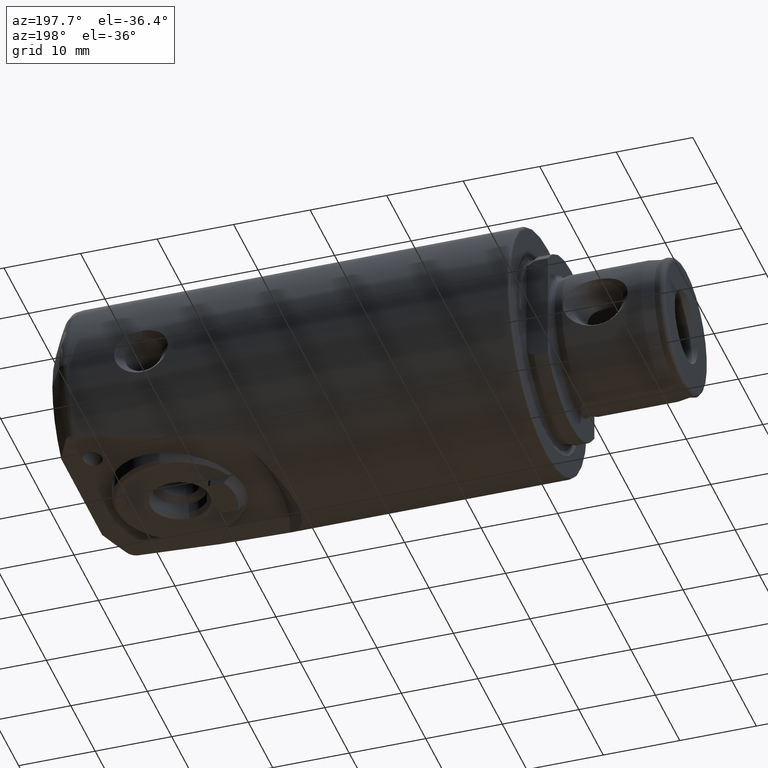
[diagram: clean part render]
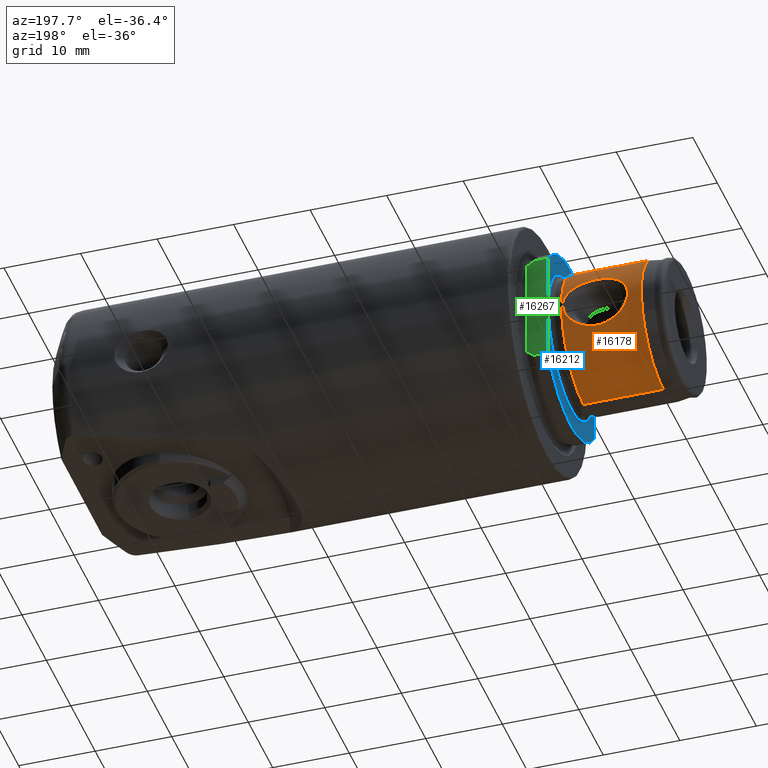
[diagram: same view with three faces highlighted in distinct colors, each labeled with its STEP entity id]
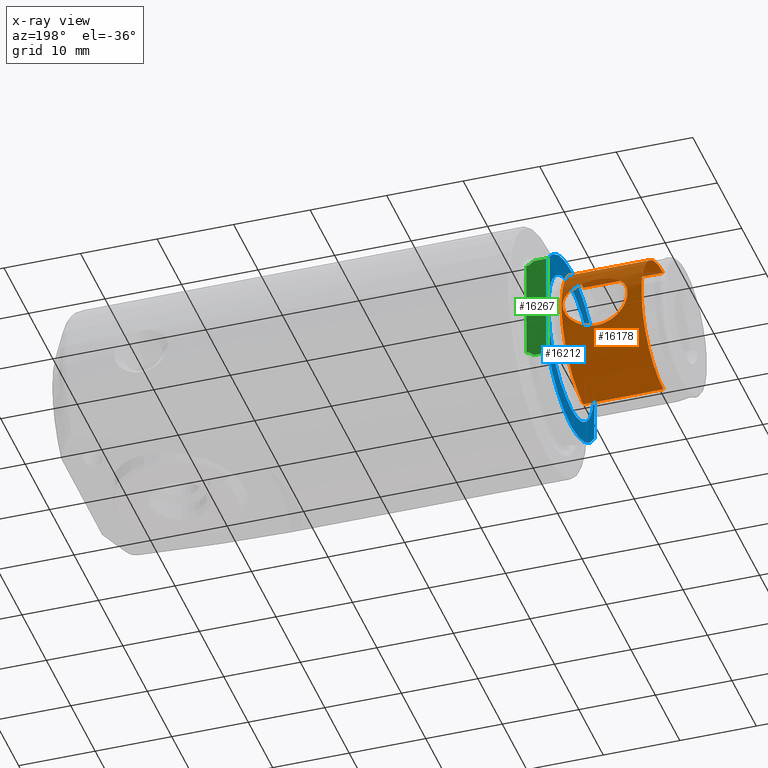
[diagram: x-ray of the same camera — body ghosted, the three highlighted faces saturated]
A machine part, auxiliary view with three faces highlighted in distinct colors.
The next image is the same camera in x-ray (body ghosted, the three faces saturated) — at least one of them is partly hidden behind the body in this view.
Their STEP definitions:

[orange] entity #16178 — the highlighted cylindrical surface (partial cylindrical patch) has radius 9 mm, axis along (-1, -0, -0).
#126 = AXIS2_PLACEMENT_3D ( 'NONE', #869, #870, #871 ) ;
#127 = AXIS2_PLACEMENT_3D ( 'NONE', #17529, #17531, #17533 ) ;
#290 = AXIS2_PLACEMENT_3D ( 'NONE', #12076, #9062, #9063 ) ;
#428 = VERTEX_POINT ( 'NONE', #16238 ) ;
#618 = VERTEX_POINT ( 'NONE', #16286 ) ;
#747 = CARTESIAN_POINT ( 'NONE',  ( 8.792119331565921000, 8.279182839309770600, 3.529182839309769700 ) ) ;
#783 = CARTESIAN_POINT ( 'NONE',  ( 9.050000000000002500, 8.279182839309772400, 3.529182839309770600 ) ) ;
#786 = CARTESIAN_POINT ( 'NONE',  ( 8.534371879930486000, 8.287770700800534100, 3.509222754150196400 ) ) ;
#787 = CARTESIAN_POINT ( 'NONE',  ( 8.030629303562751200, 8.320374629871484000, 3.431202929860633700 ) ) ;
#788 = CARTESIAN_POINT ( 'NONE',  ( 7.782828082071356200, 8.344380062457190700, 3.373179524496056300 ) ) ;
#789 = CARTESIAN_POINT ( 'NONE',  ( 7.295550732481837400, 8.405728157645263800, 3.217258595603105200 ) ) ;
#790 = CARTESIAN_POINT ( 'NONE',  ( 7.058433417566536000, 8.442869157967438200, 3.119745613289564000 ) ) ;
#791 = CARTESIAN_POINT ( 'NONE',  ( 6.609762264773638500, 8.524247717753041800, 2.889991895590608100 ) ) ;
#792 = CARTESIAN_POINT ( 'NONE',  ( 6.396213130731509500, 8.568739803727364500, 2.757208420720764800 ) ) ;
#793 = CARTESIAN_POINT ( 'NONE',  ( 5.992332893486008100, 8.661158162952521200, 2.451497374176875500 ) ) ;
#794 = CARTESIAN_POINT ( 'NONE',  ( 5.803581312974997400, 8.708792367896316800, 2.279102721991653100 ) ) ;
#795 = CARTESIAN_POINT ( 'NONE',  ( 5.467915888044560200, 8.798626071499713300, 1.903037828957794500 ) ) ;
#796 = CARTESIAN_POINT ( 'NONE',  ( 5.317749119378566600, 8.841668578324840800, 1.695896072397754800 ) ) ;
#797 = CARTESIAN_POINT ( 'NONE',  ( 5.068094435295361000, 8.915698750673126200, 1.249592943544666700 ) ) ;
#798 = CARTESIAN_POINT ( 'NONE',  ( 4.970304389879433200, 8.946111447659763600, 1.014557819399824800 ) ) ;
#799 = CARTESIAN_POINT ( 'NONE',  ( 4.869050336493750700, 8.977960561359820300, 0.6417036382795913200 ) ) ;
#800 = CARTESIAN_POINT ( 'NONE',  ( 4.843133275222428800, 8.986211832899973800, 0.5139959891301637600 ) ) ;
#801 = CARTESIAN_POINT ( 'NONE',  ( 4.808858795842867000, 8.997152024550322500, 0.2597122055726454600 ) ) ;
#802 = CARTESIAN_POINT ( 'NONE',  ( 4.800185150849697100, 8.999940612023802800, 0.1321312035373216900 ) ) ;
#803 = CARTESIAN_POINT ( 'NONE',  ( 4.799638471519117800, 9.000115961901936900, -0.2519352534534669000 ) ) ;
#804 = CARTESIAN_POINT ( 'NONE',  ( 4.834568683255204400, 8.988813486137850400, -0.5126193607702556100 ) ) ;
#805 = CARTESIAN_POINT ( 'NONE',  ( 4.967698236952844400, 8.946924533849381700, -1.007019306276765400 ) ) ;
#806 = CARTESIAN_POINT ( 'NONE',  ( 5.066902088414940900, 8.916065482257227600, -1.246917065820423200 ) ) ;
#807 = CARTESIAN_POINT ( 'NONE',  ( 5.439981501606305300, 8.805396908864471700, -1.915486541088751800 ) ) ;
#808 = CARTESIAN_POINT ( 'NONE',  ( 5.788402104609161800, 8.707800687053076400, -2.297282546585159000 ) ) ;
#809 = CARTESIAN_POINT ( 'NONE',  ( 6.601665494909882500, 8.521749144933309600, -2.912574705499452400 ) ) ;
#810 = CARTESIAN_POINT ( 'NONE',  ( 7.051484680047200200, 8.436421666946156300, -3.139263925468031700 ) ) ;
#811 = CARTESIAN_POINT ( 'NONE',  ( 8.028637999510726400, 8.313467062340501800, -3.451732020253471600 ) ) ;
#812 = CARTESIAN_POINT ( 'NONE',  ( 8.533174890312116300, 8.279182839309779500, -3.529182839309779100 ) ) ;
#813 = CARTESIAN_POINT ( 'NONE',  ( 9.050000000000002500, 8.279182839309770600, -3.529182839309769300 ) ) ;
#867 = CARTESIAN_POINT ( 'NONE',  ( 9.567191563781070900, 8.279182839309779500, -3.529182839309779100 ) ) ;
#869 = CARTESIAN_POINT ( 'NONE',  ( 13.43799579955534000, 0.0000000000000000000, 0.0000000000000000000 ) ) ;
#870 = DIRECTION ( 'NONE',  ( -1.000000000000000000, -0.0000000000000000000, -0.0000000000000000000 ) ) ;
#871 = DIRECTION ( 'NONE',  ( 0.0000000000000000000, 0.0000000000000000000, 1.000000000000000000 ) ) ;
#872 = CARTESIAN_POINT ( 'NONE',  ( 9.050000000000002500, 8.279182839309770600, -3.529182839309769300 ) ) ;
#873 = CARTESIAN_POINT ( 'NONE',  ( 10.07141737996730800, 8.313471798190427400, -3.451720976327822500 ) ) ;
#874 = CARTESIAN_POINT ( 'NONE',  ( 11.04857319843715900, 8.436431182535118400, -3.139238751684581900 ) ) ;
#875 = CARTESIAN_POINT ( 'NONE',  ( 11.49938081513970000, 8.522001333031578700, -2.911697848329548600 ) ) ;
#876 = CARTESIAN_POINT ( 'NONE',  ( 12.10709757366733400, 8.661010426919251200, -2.452044280765697700 ) ) ;
#877 = CARTESIAN_POINT ( 'NONE',  ( 12.29462755135398300, 8.708333058724395700, -2.280836473046138600 ) ) ;
#878 = CARTESIAN_POINT ( 'NONE',  ( 12.63033696911628000, 8.798138645976671100, -1.905265347562255200 ) ) ;
#879 = CARTESIAN_POINT ( 'NONE',  ( 12.78124555637710300, 8.841380236149579000, -1.697291616488287900 ) ) ;
#880 = CARTESIAN_POINT ( 'NONE',  ( 13.03044896325506800, 8.915257153355147700, -1.252594587696995500 ) ) ;
#881 = CARTESIAN_POINT ( 'NONE',  ( 13.12855499283305600, 8.945755720386781500, -1.017833262778579300 ) ) ;
#882 = CARTESIAN_POINT ( 'NONE',  ( 13.26437316954764400, 8.988470792882919700, -0.5195409176783304400 ) ) ;
#883 = CARTESIAN_POINT ( 'NONE',  ( 13.29926759921525400, 8.999765079491659500, -0.2642737472464791200 ) ) ;
#884 = CARTESIAN_POINT ( 'NONE',  ( 13.30070953111818500, 9.000227584962750900, 0.2480232214870686500 ) ) ;
#885 = CARTESIAN_POINT ( 'NONE',  ( 13.26613388505780500, 8.989039081199392100, 0.5085824007325204800 ) ) ;
#886 = CARTESIAN_POINT ( 'NONE',  ( 13.13383396513952000, 8.947402180837704200, 1.002733202804021000 ) ) ;
#887 = CARTESIAN_POINT ( 'NONE',  ( 13.03480438549420800, 8.916589063687931500, 1.243135070434728600 ) ) ;
#888 = CARTESIAN_POINT ( 'NONE',  ( 12.78706372708602100, 8.843065949956420400, 1.688528927423316800 ) ) ;
#889 = CARTESIAN_POINT ( 'NONE',  ( 12.63804335945576400, 8.800272531126244900, 1.895655175006566700 ) ) ;
#890 = CARTESIAN_POINT ( 'NONE',  ( 12.29941851167200400, 8.709544960498469400, 2.276429604815410000 ) ) ;
#891 = CARTESIAN_POINT ( 'NONE',  ( 12.11305405915325800, 8.662473897318644600, 2.446865545760772000 ) ) ;
#892 = CARTESIAN_POINT ( 'NONE',  ( 11.70972705713950300, 8.570018315877339500, 2.753251003138839500 ) ) ;
#893 = CARTESIAN_POINT ( 'NONE',  ( 11.49200698931541500, 8.524581060407364000, 2.889034789179233600 ) ) ;
#1931 = EDGE_LOOP ( 'NONE', ( #20074, #20075, #20076, #20077 ) ) ;
#1980 = EDGE_LOOP ( 'NONE', ( #20072, #20073 ) ) ;
#5164 = B_SPLINE_CURVE_WITH_KNOTS ( 'NONE', 3,
 ( #783, #747, #786, #787, #788, #789, #790, #791, #792, #793, #794, #795, #796, #797, #798, #799, #800, #801, #802, #803, #804, #805, #806, #807, #808, #809, #810, #811, #812, #813 ),
 .UNSPECIFIED., .F., .F.,
 ( 4, 2, 2, 2, 2, 2, 2, 2, 2, 2, 2, 2, 2, 2, 4 ),
 ( 0.01525965988027194000, 0.01602502366883326200, 0.01679038745739458400, 0.01755575124595590600, 0.01832111503451722800, 0.01908647882307855400, 0.01985184261163987600, 0.02061720640020119800, 0.02099988829448186000, 0.02138257018876252300, 0.02214793397732384200, 0.02291329776588516700, 0.02444402534300781100, 0.02597475292013045500, 0.02750548049725309900 ),
 .UNSPECIFIED. ) ;
#5167 = B_SPLINE_CURVE_WITH_KNOTS ( 'NONE', 3,
 ( #872, #867, #873, #874, #875, #876, #877, #878, #879, #880, #881, #882, #883, #884, #885, #886, #887, #888, #889, #890, #891, #892, #893, #17512, #17513, #17514, #17515, #17516, #17518, #17520 ),
 .UNSPECIFIED., .F., .F.,
 ( 4, 2, 2, 2, 2, 2, 2, 2, 2, 2, 2, 2, 2, 2, 4 ),
 ( 0.003005156381972999400, 0.004536969319260369100, 0.006068782256547739600, 0.006834688725191422800, 0.007600595193835105000, 0.008366501662478789000, 0.009132408131122472100, 0.009898314599766155200, 0.01066422106840983800, 0.01143012753705352100, 0.01219603400569720500, 0.01296194047434088800, 0.01372784694298457100, 0.01449375341162825700, 0.01525965988027194000 ),
 .UNSPECIFIED. ) ;
#9062 = DIRECTION ( 'NONE',  ( -1.000000000000000000, -0.0000000000000000000, -0.0000000000000000000 ) ) ;
#9063 = DIRECTION ( 'NONE',  ( 0.0000000000000000000, 0.0000000000000000000, 1.000000000000000000 ) ) ;
#10093 = FACE_BOUND ( 'NONE', #1980, .T. ) ;
#10095 = FACE_OUTER_BOUND ( 'NONE', #1931, .T. ) ;
#10101 = CYLINDRICAL_SURFACE ( 'NONE', #290, 9.000000000000000000 ) ;
#11078 = EDGE_CURVE ( 'NONE', #618, #428, #5164, .T. ) ;
#11100 = EDGE_CURVE ( 'NONE', #16102, #12104, #13474, .T. ) ;
#11102 = EDGE_CURVE ( 'NONE', #428, #618, #5167, .T. ) ;
#11103 = EDGE_CURVE ( 'NONE', #12104, #21706, #13482, .T. ) ;
#11104 = EDGE_CURVE ( 'NONE', #12095, #21706, #13479, .T. ) ;
#11105 = EDGE_CURVE ( 'NONE', #16102, #12095, #13480, .T. ) ;
#11921 = CARTESIAN_POINT ( 'NONE',  ( 13.43799579955534000, 0.0000000000000000000, 9.000000000000000000 ) ) ;
#12076 = CARTESIAN_POINT ( 'NONE',  ( -7.755547907243324000, 0.0000000000000000000, 0.0000000000000000000 ) ) ;
#12095 = VERTEX_POINT ( 'NONE', #17781 ) ;
#12104 = VERTEX_POINT ( 'NONE', #17797 ) ;
#13474 = CIRCLE ( 'NONE', #126, 9.000000000000000000 ) ;
#13479 = CIRCLE ( 'NONE', #127, 9.000000000000000000 ) ;
#13480 = LINE ( 'NONE', #17527, #13486 ) ;
#13482 = LINE ( 'NONE', #17522, #13483 ) ;
#13483 = VECTOR ( 'NONE', #17524, 1000.000000000000000 ) ;
#13486 = VECTOR ( 'NONE', #17535, 1000.000000000000000 ) ;
#15322 = CARTESIAN_POINT ( 'NONE',  ( 2.999999999999999100, 0.0000000000000000000, -9.000000000000000000 ) ) ;
#16102 = VERTEX_POINT ( 'NONE', #11921 ) ;
#16178 = ADVANCED_FACE ( 'NONE', ( #10093, #10095 ), #10101, .T. ) ;
#16238 = CARTESIAN_POINT ( 'NONE',  ( 9.050000000000002500, 8.279182839309770600, -3.529182839309769300 ) ) ;
#16286 = CARTESIAN_POINT ( 'NONE',  ( 9.050000000000002500, 8.279182839309772400, 3.529182839309770600 ) ) ;
#17512 = CARTESIAN_POINT ( 'NONE',  ( 11.04123879974342300, 8.442797304573558000, 3.119964413647908800 ) ) ;
#17513 = CARTESIAN_POINT ( 'NONE',  ( 10.80650665845777800, 8.406018231460349100, 3.216507518768895400 ) ) ;
#17514 = CARTESIAN_POINT ( 'NONE',  ( 10.31825695301665600, 8.344485818480633200, 3.372924480494070600 ) ) ;
#17515 = CARTESIAN_POINT ( 'NONE',  ( 10.06743603305888600, 8.320202840874333800, 3.431618515336511500 ) ) ;
#17516 = CARTESIAN_POINT ( 'NONE',  ( 9.563126209198278700, 8.287655751161231900, 3.509493282275630800 ) ) ;
#17518 = CARTESIAN_POINT ( 'NONE',  ( 9.308063518347388800, 8.279182839309772400, 3.529182839309770600 ) ) ;
#17520 = CARTESIAN_POINT ( 'NONE',  ( 9.050000000000002500, 8.279182839309772400, 3.529182839309770600 ) ) ;
#17522 = CARTESIAN_POINT ( 'NONE',  ( -7.755547907243324000, 1.102182119232617700E-015, -9.000000000000000000 ) ) ;
#17524 = DIRECTION ( 'NONE',  ( -1.000000000000000000, -0.0000000000000000000, -0.0000000000000000000 ) ) ;
#17527 = CARTESIAN_POINT ( 'NONE',  ( -7.755547907243324000, 0.0000000000000000000, 9.000000000000000000 ) ) ;
#17529 = CARTESIAN_POINT ( 'NONE',  ( 2.999999999999999100, 0.0000000000000000000, 0.0000000000000000000 ) ) ;
#17531 = DIRECTION ( 'NONE',  ( -1.000000000000000000, -0.0000000000000000000, -0.0000000000000000000 ) ) ;
#17533 = DIRECTION ( 'NONE',  ( 0.0000000000000000000, 0.0000000000000000000, 1.000000000000000000 ) ) ;
#17535 = DIRECTION ( 'NONE',  ( -1.000000000000000000, -0.0000000000000000000, -0.0000000000000000000 ) ) ;
#17781 = CARTESIAN_POINT ( 'NONE',  ( 2.999999999999999100, 1.102182119232617700E-015, 9.000000000000000000 ) ) ;
#17797 = CARTESIAN_POINT ( 'NONE',  ( 13.43799579955534000, 1.102182119232617700E-015, -9.000000000000000000 ) ) ;
#20072 = ORIENTED_EDGE ( 'NONE', *, *, #11078, .T. ) ;
#20073 = ORIENTED_EDGE ( 'NONE', *, *, #11102, .T. ) ;
#20074 = ORIENTED_EDGE ( 'NONE', *, *, #11100, .T. ) ;
#20075 = ORIENTED_EDGE ( 'NONE', *, *, #11103, .T. ) ;
#20076 = ORIENTED_EDGE ( 'NONE', *, *, #11104, .F. ) ;
#20077 = ORIENTED_EDGE ( 'NONE', *, *, #11105, .F. ) ;
#21706 = VERTEX_POINT ( 'NONE', #15322 ) ;

[blue] entity #16212 — the highlighted planar face has unit normal (1, 0, 0).
#124 = AXIS2_PLACEMENT_3D ( 'NONE', #860, #861, #862 ) ;
#140 = AXIS2_PLACEMENT_3D ( 'NONE', #17663, #17665, #17666 ) ;
#322 = AXIS2_PLACEMENT_3D ( 'NONE', #9164, #9169, #9170 ) ;
#860 = CARTESIAN_POINT ( 'NONE',  ( 15.04999999999999700, 0.0000000000000000000, 0.0000000000000000000 ) ) ;
#861 = DIRECTION ( 'NONE',  ( -1.000000000000000000, -0.0000000000000000000, -0.0000000000000000000 ) ) ;
#862 = DIRECTION ( 'NONE',  ( 0.0000000000000000000, 0.0000000000000000000, 1.000000000000000000 ) ) ;
#3079 = VERTEX_POINT ( 'NONE', #11538 ) ;
#6225 = VERTEX_POINT ( 'NONE', #11578 ) ;
#6228 = VERTEX_POINT ( 'NONE', #11581 ) ;
#6508 = EDGE_CURVE ( 'NONE', #16097, #12078, #13153, .T. ) ;
#6509 = EDGE_CURVE ( 'NONE', #3079, #6225, #13154, .T. ) ;
#6510 = EDGE_CURVE ( 'NONE', #6225, #6228, #13155, .T. ) ;
#6512 = EDGE_CURVE ( 'NONE', #6228, #16124, #13160, .T. ) ;
#6514 = EDGE_CURVE ( 'NONE', #21675, #3079, #13156, .T. ) ;
#8965 = ORIENTED_EDGE ( 'NONE', *, *, #6508, .F. ) ;
#8966 = ORIENTED_EDGE ( 'NONE', *, *, #11097, .F. ) ;
#8967 = ORIENTED_EDGE ( 'NONE', *, *, #6509, .T. ) ;
#8968 = ORIENTED_EDGE ( 'NONE', *, *, #6510, .T. ) ;
#8969 = ORIENTED_EDGE ( 'NONE', *, *, #6512, .T. ) ;
#8970 = ORIENTED_EDGE ( 'NONE', *, *, #11127, .T. ) ;
#8971 = ORIENTED_EDGE ( 'NONE', *, *, #6514, .T. ) ;
#9164 = CARTESIAN_POINT ( 'NONE',  ( 15.04999999999999700, 9.349999999999999600, 0.0000000000000000000 ) ) ;
#9167 = PLANE ( 'NONE',  #322 ) ;
#9169 = DIRECTION ( 'NONE',  ( 1.000000000000000000, 0.0000000000000000000, 0.0000000000000000000 ) ) ;
#9170 = DIRECTION ( 'NONE',  ( 0.0000000000000000000, 0.0000000000000000000, -1.000000000000000000 ) ) ;
#10164 = FACE_OUTER_BOUND ( 'NONE', #16575, .T. ) ;
#10169 = FACE_BOUND ( 'NONE', #16571, .T. ) ;
#11097 = EDGE_CURVE ( 'NONE', #12078, #16097, #13469, .T. ) ;
#11127 = EDGE_CURVE ( 'NONE', #16124, #21675, #13508, .T. ) ;
#11538 = CARTESIAN_POINT ( 'NONE',  ( 15.04999999999999700, 9.500000000000000000, 7.290447517128149500 ) ) ;
#11578 = CARTESIAN_POINT ( 'NONE',  ( 15.04999999999999700, 9.500000000000000000, -7.290447517128149500 ) ) ;
#11581 = CARTESIAN_POINT ( 'NONE',  ( 15.04999999999999700, -9.500000000000000000, -7.290447517128149500 ) ) ;
#11908 = CARTESIAN_POINT ( 'NONE',  ( 15.04999999999999700, 0.0000000000000000000, 9.349999999999999600 ) ) ;
#11943 = CARTESIAN_POINT ( 'NONE',  ( 15.04999999999999700, -9.500000000000003600, 7.290447517128146900 ) ) ;
#12078 = VERTEX_POINT ( 'NONE', #17746 ) ;
#13153 = CIRCLE ( 'NONE', #21932, 9.349999999999999600 ) ;
#13154 = LINE ( 'NONE', #18689, #13157 ) ;
#13155 = CIRCLE ( 'NONE', #21934, 11.97500000000000000 ) ;
#13156 = CIRCLE ( 'NONE', #21936, 11.97500000000000000 ) ;
#13157 = VECTOR ( 'NONE', #18685, 1000.000000000000000 ) ;
#13160 = LINE ( 'NONE', #18693, #13161 ) ;
#13161 = VECTOR ( 'NONE', #18700, 1000.000000000000000 ) ;
#13469 = CIRCLE ( 'NONE', #124, 9.349999999999999600 ) ;
#13508 = CIRCLE ( 'NONE', #140, 11.97500000000000000 ) ;
#15321 = CARTESIAN_POINT ( 'NONE',  ( 15.04999999999999700, 0.0000000000000000000, 11.97500000000000000 ) ) ;
#16097 = VERTEX_POINT ( 'NONE', #11908 ) ;
#16124 = VERTEX_POINT ( 'NONE', #11943 ) ;
#16212 = ADVANCED_FACE ( 'NONE', ( #10169, #10164 ), #9167, .F. ) ;
#16571 = EDGE_LOOP ( 'NONE', ( #8965, #8966 ) ) ;
#16575 = EDGE_LOOP ( 'NONE', ( #8967, #8968, #8969, #8970, #8971 ) ) ;
#17663 = CARTESIAN_POINT ( 'NONE',  ( 15.04999999999999700, 0.0000000000000000000, 0.0000000000000000000 ) ) ;
#17665 = DIRECTION ( 'NONE',  ( -1.000000000000000000, -0.0000000000000000000, -0.0000000000000000000 ) ) ;
#17666 = DIRECTION ( 'NONE',  ( 0.0000000000000000000, 0.0000000000000000000, 1.000000000000000000 ) ) ;
#17746 = CARTESIAN_POINT ( 'NONE',  ( 15.04999999999999700, 1.145044757202775300E-015, -9.349999999999999600 ) ) ;
#18685 = DIRECTION ( 'NONE',  ( -0.0000000000000000000, -0.0000000000000000000, -1.000000000000000000 ) ) ;
#18689 = CARTESIAN_POINT ( 'NONE',  ( 15.04999999999999700, 9.500000000000000000, -7.290447517128149500 ) ) ;
#18690 = CARTESIAN_POINT ( 'NONE',  ( 15.04999999999999700, 0.0000000000000000000, 0.0000000000000000000 ) ) ;
#18691 = DIRECTION ( 'NONE',  ( -1.000000000000000000, -0.0000000000000000000, -0.0000000000000000000 ) ) ;
#18692 = DIRECTION ( 'NONE',  ( 0.0000000000000000000, 0.0000000000000000000, 1.000000000000000000 ) ) ;
#18693 = CARTESIAN_POINT ( 'NONE',  ( 15.04999999999999700, -9.500000000000000000, -7.290447517128149500 ) ) ;
#18697 = CARTESIAN_POINT ( 'NONE',  ( 15.04999999999999700, 0.0000000000000000000, 0.0000000000000000000 ) ) ;
#18698 = DIRECTION ( 'NONE',  ( -1.000000000000000000, -0.0000000000000000000, -0.0000000000000000000 ) ) ;
#18699 = DIRECTION ( 'NONE',  ( 0.0000000000000000000, 0.0000000000000000000, 1.000000000000000000 ) ) ;
#18700 = DIRECTION ( 'NONE',  ( 0.0000000000000000000, 0.0000000000000000000, 1.000000000000000000 ) ) ;
#18702 = CARTESIAN_POINT ( 'NONE',  ( 15.04999999999999700, 0.0000000000000000000, 0.0000000000000000000 ) ) ;
#18703 = DIRECTION ( 'NONE',  ( -1.000000000000000000, -0.0000000000000000000, -0.0000000000000000000 ) ) ;
#18704 = DIRECTION ( 'NONE',  ( 0.0000000000000000000, 0.0000000000000000000, 1.000000000000000000 ) ) ;
#21675 = VERTEX_POINT ( 'NONE', #15321 ) ;
#21932 = AXIS2_PLACEMENT_3D ( 'NONE', #18690, #18691, #18692 ) ;
#21934 = AXIS2_PLACEMENT_3D ( 'NONE', #18697, #18698, #18699 ) ;
#21936 = AXIS2_PLACEMENT_3D ( 'NONE', #18702, #18703, #18704 ) ;

[green] entity #16267 — the highlighted planar face has unit normal (0, 1, 0).
#346 = AXIS2_PLACEMENT_3D ( 'NONE', #9240, #9251, #9252 ) ;
#398 = VERTEX_POINT ( 'NONE', #16219 ) ;
#3066 = VERTEX_POINT ( 'NONE', #11534 ) ;
#3079 = VERTEX_POINT ( 'NONE', #11538 ) ;
#4508 = B_SPLINE_CURVE_WITH_KNOTS ( 'NONE', 3,
 ( #11777, #11778, #11782, #11783, #11784, #11785 ),
 .UNSPECIFIED., .F., .F.,
 ( 4, 2, 4 ),
 ( 0.004729639228142901200, 0.004866861756411787500, 0.005004084284680674700 ),
 .UNSPECIFIED. ) ;
#4509 = B_SPLINE_CURVE_WITH_KNOTS ( 'NONE', 3,
 ( #11787, #11786, #11791, #11792, #11793, #11794 ),
 .UNSPECIFIED., .F., .F.,
 ( 4, 2, 4 ),
 ( 0.004757707555040566400, 0.004894695422962626000, 0.005031683290884684700 ),
 .UNSPECIFIED. ) ;
#4939 = B_SPLINE_CURVE_WITH_KNOTS ( 'NONE', 3,
 ( #18724, #18726, #18727, #18728 ),
 .UNSPECIFIED., .F., .F.,
 ( 4, 4 ),
 ( 0.01042464726496665000, 0.01122204267442676400 ),
 .UNSPECIFIED. ) ;
#4943 = B_SPLINE_CURVE_WITH_KNOTS ( 'NONE', 3,
 ( #18716, #18731, #18732, #18733 ),
 .UNSPECIFIED., .F., .F.,
 ( 4, 4 ),
 ( 0.02809434223629901600, 0.02889067246149120600 ),
 .UNSPECIFIED. ) ;
#4948 = B_SPLINE_CURVE_WITH_KNOTS ( 'NONE', 3,
 ( #18743, #18744, #18745, #18746, #18747 ),
 .UNSPECIFIED., .F., .F.,
 ( 4, 1, 4 ),
 ( 0.004657220135990436000, 0.004707463845515501600, 0.004757707555040566400 ),
 .UNSPECIFIED. ) ;
#4952 = B_SPLINE_CURVE_WITH_KNOTS ( 'NONE', 3,
 ( #18749, #18754, #18755, #18756, #18757, #18758 ),
 .UNSPECIFIED., .F., .F.,
 ( 4, 2, 4 ),
 ( 5.664496915216983400E-005, 0.0001069768672939435600, 0.0001573087654357172700 ),
 .UNSPECIFIED. ) ;
#5353 = VERTEX_POINT ( 'NONE', #11547 ) ;
#5369 = VERTEX_POINT ( 'NONE', #11562 ) ;
#6213 = VERTEX_POINT ( 'NONE', #11566 ) ;
#6217 = VERTEX_POINT ( 'NONE', #11570 ) ;
#6221 = VERTEX_POINT ( 'NONE', #11574 ) ;
#6225 = VERTEX_POINT ( 'NONE', #11578 ) ;
#6509 = EDGE_CURVE ( 'NONE', #3079, #6225, #13154, .T. ) ;
#6516 = EDGE_CURVE ( 'NONE', #3066, #6225, #13163, .T. ) ;
#6524 = EDGE_CURVE ( 'NONE', #6217, #3079, #13169, .T. ) ;
#6527 = EDGE_CURVE ( 'NONE', #6217, #5369, #4939, .T. ) ;
#6529 = EDGE_CURVE ( 'NONE', #398, #3066, #4943, .T. ) ;
#6535 = EDGE_CURVE ( 'NONE', #6221, #12081, #4948, .T. ) ;
#6539 = EDGE_CURVE ( 'NONE', #5353, #6213, #4952, .T. ) ;
#6565 = EDGE_CURVE ( 'NONE', #6213, #6221, #13182, .T. ) ;
#9060 = ORIENTED_EDGE ( 'NONE', *, *, #6529, .T. ) ;
#9061 = ORIENTED_EDGE ( 'NONE', *, *, #6516, .T. ) ;
#9240 = CARTESIAN_POINT ( 'NONE',  ( 63.70738233589844400, 9.500000000000000000, -7.290447517128149500 ) ) ;
#9249 = PLANE ( 'NONE',  #346 ) ;
#9251 = DIRECTION ( 'NONE',  ( 0.0000000000000000000, 1.000000000000000000, 0.0000000000000000000 ) ) ;
#9252 = DIRECTION ( 'NONE',  ( 0.0000000000000000000, -0.0000000000000000000, 1.000000000000000000 ) ) ;
#10214 = FACE_OUTER_BOUND ( 'NONE', #16593, .T. ) ;
#11534 = CARTESIAN_POINT ( 'NONE',  ( 16.86640578023588300, 9.500000000000000000, -7.290447517128149500 ) ) ;
#11538 = CARTESIAN_POINT ( 'NONE',  ( 15.04999999999999700, 9.500000000000000000, 7.290447517128149500 ) ) ;
#11547 = CARTESIAN_POINT ( 'NONE',  ( 17.75000000000000000, 9.500000000000000000, 6.700046641628693700 ) ) ;
#11562 = CARTESIAN_POINT ( 'NONE',  ( 17.49642904295555100, 9.500000000000000000, 6.797116413150209100 ) ) ;
#11566 = CARTESIAN_POINT ( 'NONE',  ( 17.85000000000000100, 9.500000000000000000, 6.714596780918525600 ) ) ;
#11570 = CARTESIAN_POINT ( 'NONE',  ( 16.86640578023589800, 9.500000000000000000, 7.290447517128149500 ) ) ;
#11574 = CARTESIAN_POINT ( 'NONE',  ( 17.85000000000000100, 9.500000000000000000, -6.714596780918525600 ) ) ;
#11578 = CARTESIAN_POINT ( 'NONE',  ( 15.04999999999999700, 9.500000000000000000, -7.290447517128149500 ) ) ;
#11777 = CARTESIAN_POINT ( 'NONE',  ( 17.49642904295555100, 9.500000000000000000, 6.797116413150209100 ) ) ;
#11778 = CARTESIAN_POINT ( 'NONE',  ( 17.53240991389293800, 9.499999999999998200, 6.768282237418155500 ) ) ;
#11782 = CARTESIAN_POINT ( 'NONE',  ( 17.57192268718985400, 9.500000000000001800, 6.743956337739591700 ) ) ;
#11783 = CARTESIAN_POINT ( 'NONE',  ( 17.65751039194103500, 9.500000000000000000, 6.709679976419766800 ) ) ;
#11784 = CARTESIAN_POINT ( 'NONE',  ( 17.70424072861905900, 9.500000000000001800, 6.700046641629653800 ) ) ;
#11785 = CARTESIAN_POINT ( 'NONE',  ( 17.75000000000000000, 9.500000000000000000, 6.700046641628693700 ) ) ;
#11786 = CARTESIAN_POINT ( 'NONE',  ( 17.70344924342002500, 9.499999999999998200, -6.700046641628655500 ) ) ;
#11787 = CARTESIAN_POINT ( 'NONE',  ( 17.75000000000019200, 9.500000000000000000, -6.700046641629389100 ) ) ;
#11791 = CARTESIAN_POINT ( 'NONE',  ( 17.65805254878827300, 9.500000000000001800, -6.709491869085368900 ) ) ;
#11792 = CARTESIAN_POINT ( 'NONE',  ( 17.57181323002457800, 9.500000000000000000, -6.743971301739242600 ) ) ;
#11793 = CARTESIAN_POINT ( 'NONE',  ( 17.53206228983029600, 9.500000000000001800, -6.768560814699741400 ) ) ;
#11794 = CARTESIAN_POINT ( 'NONE',  ( 17.49642904295557600, 9.500000000000000000, -6.797116413150205500 ) ) ;
#12081 = VERTEX_POINT ( 'NONE', #17761 ) ;
#13154 = LINE ( 'NONE', #18689, #13157 ) ;
#13157 = VECTOR ( 'NONE', #18685, 1000.000000000000000 ) ;
#13163 = LINE ( 'NONE', #18701, #13164 ) ;
#13164 = VECTOR ( 'NONE', #18706, 1000.000000000000000 ) ;
#13169 = LINE ( 'NONE', #18717, #13170 ) ;
#13170 = VECTOR ( 'NONE', #18722, 1000.000000000000000 ) ;
#13182 = LINE ( 'NONE', #15497, #13183 ) ;
#13183 = VECTOR ( 'NONE', #15502, 1000.000000000000000 ) ;
#15497 = CARTESIAN_POINT ( 'NONE',  ( 17.85000000000000500, 9.500000000000000000, -7.290447517128149500 ) ) ;
#15502 = DIRECTION ( 'NONE',  ( 0.0000000000000000000, 0.0000000000000000000, -1.000000000000000000 ) ) ;
#16056 = EDGE_CURVE ( 'NONE', #5369, #5353, #4508, .T. ) ;
#16058 = EDGE_CURVE ( 'NONE', #12081, #398, #4509, .T. ) ;
#16219 = CARTESIAN_POINT ( 'NONE',  ( 17.49642904295557600, 9.500000000000000000, -6.797116413150205500 ) ) ;
#16267 = ADVANCED_FACE ( 'NONE', ( #10214 ), #9249, .T. ) ;
#16347 = ORIENTED_EDGE ( 'NONE', *, *, #6509, .F. ) ;
#16348 = ORIENTED_EDGE ( 'NONE', *, *, #6524, .F. ) ;
#16349 = ORIENTED_EDGE ( 'NONE', *, *, #6527, .T. ) ;
#16350 = ORIENTED_EDGE ( 'NONE', *, *, #16056, .T. ) ;
#16351 = ORIENTED_EDGE ( 'NONE', *, *, #6539, .T. ) ;
#16352 = ORIENTED_EDGE ( 'NONE', *, *, #6565, .T. ) ;
#16353 = ORIENTED_EDGE ( 'NONE', *, *, #6535, .T. ) ;
#16354 = ORIENTED_EDGE ( 'NONE', *, *, #16058, .T. ) ;
#16593 = EDGE_LOOP ( 'NONE', ( #9060, #9061, #16347, #16348, #16349, #16350, #16351, #16352, #16353, #16354 ) ) ;
#17761 = CARTESIAN_POINT ( 'NONE',  ( 17.75000000000019200, 9.500000000000000000, -6.700046641629389100 ) ) ;
#18685 = DIRECTION ( 'NONE',  ( -0.0000000000000000000, -0.0000000000000000000, -1.000000000000000000 ) ) ;
#18689 = CARTESIAN_POINT ( 'NONE',  ( 15.04999999999999700, 9.500000000000000000, -7.290447517128149500 ) ) ;
#18701 = CARTESIAN_POINT ( 'NONE',  ( 63.70738233589844400, 9.500000000000000000, -7.290447517128149500 ) ) ;
#18706 = DIRECTION ( 'NONE',  ( -1.000000000000000000, -0.0000000000000000000, -0.0000000000000000000 ) ) ;
#18716 = CARTESIAN_POINT ( 'NONE',  ( 17.49642904295557600, 9.500000000000000000, -6.797116413150205500 ) ) ;
#18717 = CARTESIAN_POINT ( 'NONE',  ( 63.70738233589844400, 9.500000000000000000, 7.290447517128149500 ) ) ;
#18722 = DIRECTION ( 'NONE',  ( -1.000000000000000000, -0.0000000000000000000, -0.0000000000000000000 ) ) ;
#18724 = CARTESIAN_POINT ( 'NONE',  ( 16.86640578023589800, 9.500000000000000000, 7.290447517128149500 ) ) ;
#18726 = CARTESIAN_POINT ( 'NONE',  ( 17.07798157159910300, 9.500000000000000000, 7.128393479506466500 ) ) ;
#18727 = CARTESIAN_POINT ( 'NONE',  ( 17.28807750313248100, 9.500000000000000000, 6.964084158977132500 ) ) ;
#18728 = CARTESIAN_POINT ( 'NONE',  ( 17.49642904295555100, 9.500000000000000000, 6.797116413150209100 ) ) ;
#18731 = CARTESIAN_POINT ( 'NONE',  ( 17.28822660318835600, 9.500000000000000000, -6.963964673897956800 ) ) ;
#18732 = CARTESIAN_POINT ( 'NONE',  ( 17.07812511799681200, 9.500000000000000000, -7.128283531798430800 ) ) ;
#18733 = CARTESIAN_POINT ( 'NONE',  ( 16.86640578023588300, 9.500000000000000000, -7.290447517128149500 ) ) ;
#18743 = CARTESIAN_POINT ( 'NONE',  ( 17.85000000000000100, 9.500000000000000000, -6.714596780918525600 ) ) ;
#18744 = CARTESIAN_POINT ( 'NONE',  ( 17.83372618720828800, 9.499999999999998200, -6.709830916109041300 ) ) ;
#18745 = CARTESIAN_POINT ( 'NONE',  ( 17.80079743515066000, 9.500000000000000000, -6.702570149717287200 ) ) ;
#18746 = CARTESIAN_POINT ( 'NONE',  ( 17.76707364839903000, 9.500000000000003600, -6.700046641628715000 ) ) ;
#18747 = CARTESIAN_POINT ( 'NONE',  ( 17.75000000000019200, 9.500000000000000000, -6.700046641629389100 ) ) ;
#18749 = CARTESIAN_POINT ( 'NONE',  ( 17.75000000000000000, 9.500000000000000000, 6.700046641628693700 ) ) ;
#18754 = CARTESIAN_POINT ( 'NONE',  ( 17.76678405882210000, 9.499999999999998200, 6.700046641629649400 ) ) ;
#18755 = CARTESIAN_POINT ( 'NONE',  ( 17.78353348251885900, 9.500000000000001800, 6.701266652348070200 ) ) ;
#18756 = CARTESIAN_POINT ( 'NONE',  ( 17.81696326179416800, 9.500000000000000000, 6.706139575171884600 ) ) ;
#18757 = CARTESIAN_POINT ( 'NONE',  ( 17.83375189535387100, 9.500000000000001800, 6.709838444863844000 ) ) ;
#18758 = CARTESIAN_POINT ( 'NONE',  ( 17.85000000000000100, 9.500000000000000000, 6.714596780918525600 ) ) ;